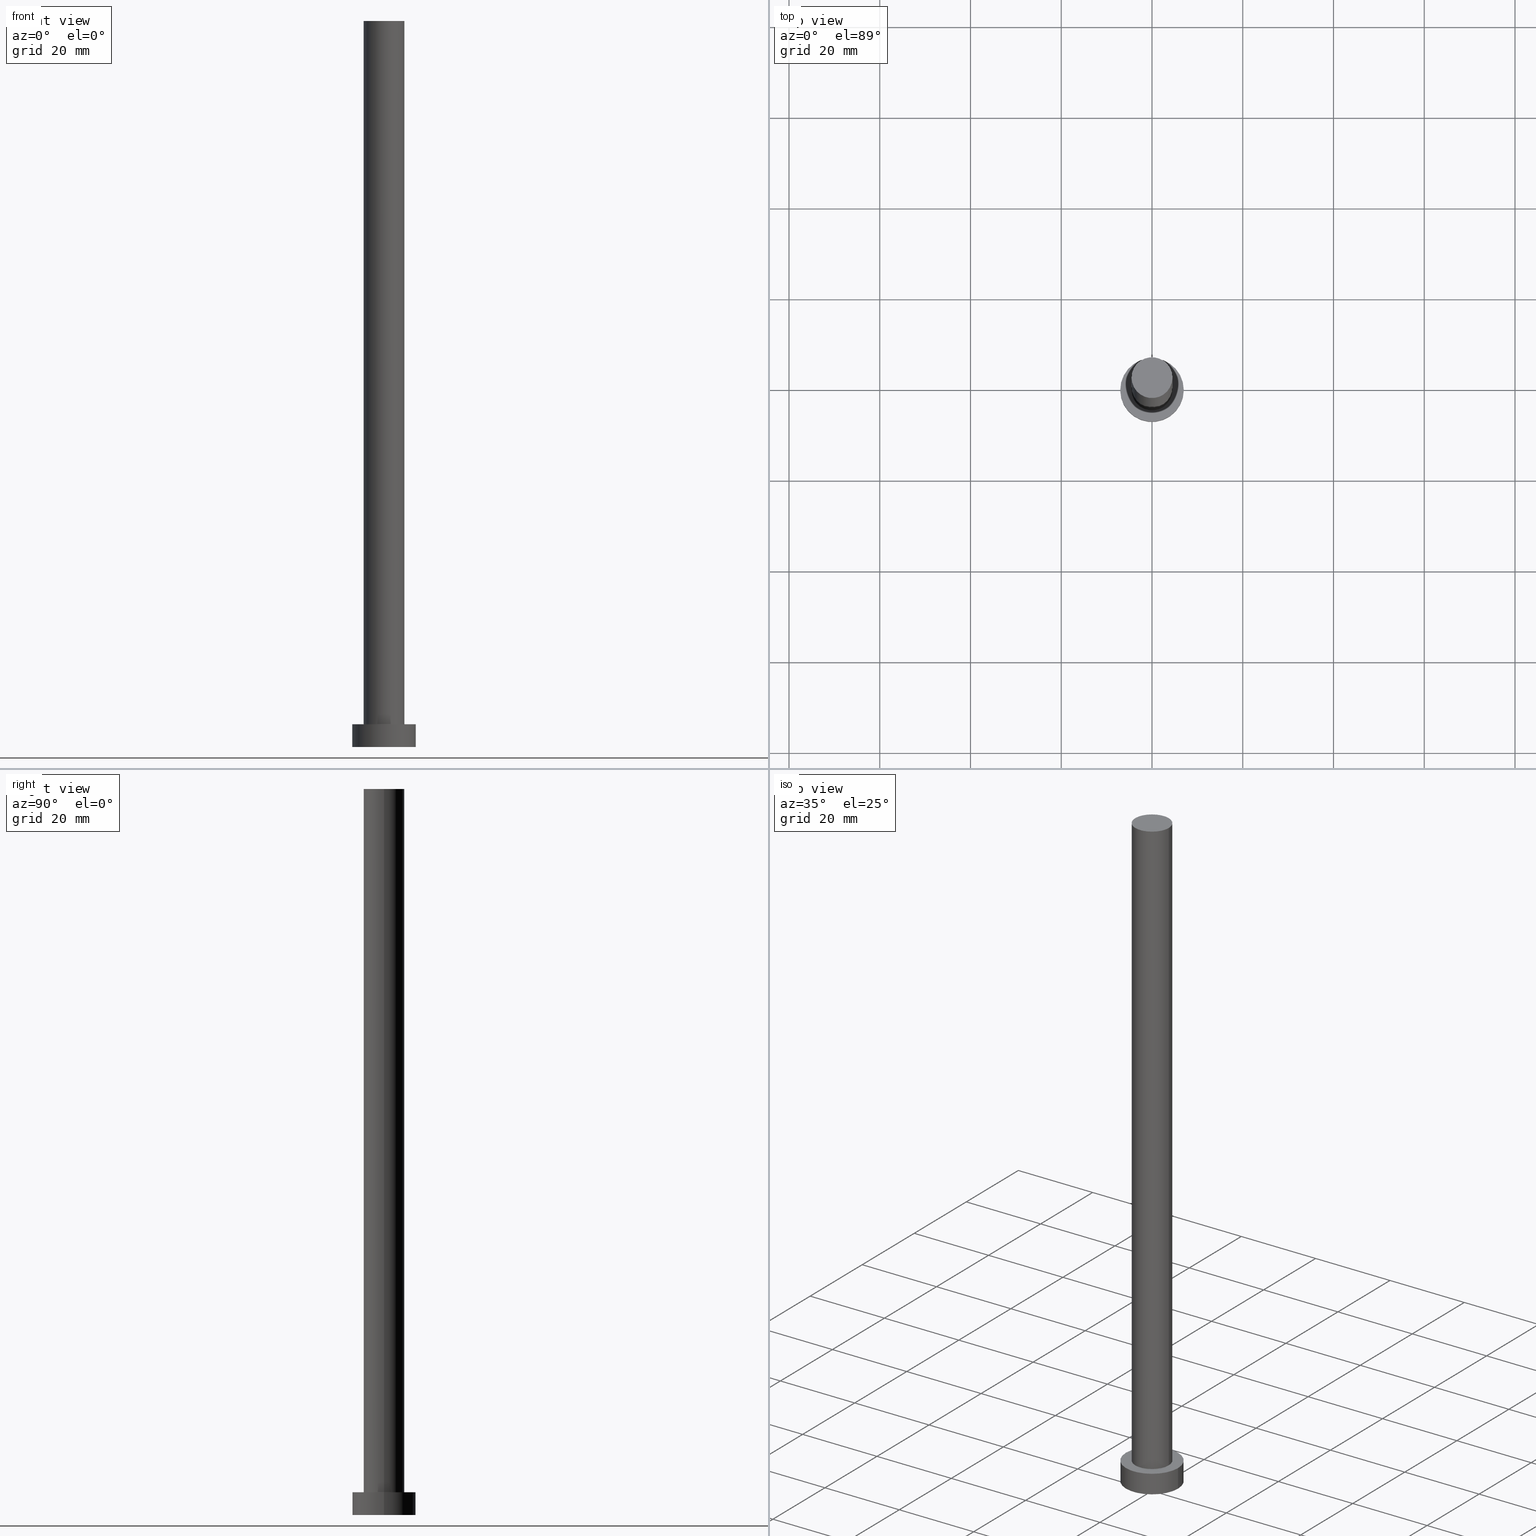
[diagram: canonical four-view strip — front | top / right | iso, engineering-drawing reading convention]
A machine part, canonical four-view strip (front | top / right | iso — engineering-drawing reading convention). The complete STEP part file that produces these views, byte-faithful:
ISO-10303-21;
HEADER;
FILE_DESCRIPTION (( 'STEP AP203' ),
    '1' );
FILE_NAME ('f4b8.STEP',
    '2023-02-12T11:36:02',
    ( '' ),
    ( '' ),
    'SwSTEP 2.0',
    'SolidWorks 2019',
    '' );
FILE_SCHEMA (( 'CONFIG_CONTROL_DESIGN' ));
ENDSEC;

DATA;
#1 = FACE_OUTER_BOUND ( 'NONE', #74, .T. ) ;
#2 = CYLINDRICAL_SURFACE ( 'NONE', #30, 4.500000000000000888 ) ;
#3 = AXIS2_PLACEMENT_3D ( 'NONE', #202, #183, #157 ) ;
#4 = CARTESIAN_POINT ( 'NONE',  ( -4.500000000000000888, 0.000000000000000000, 160.0000000000000000 ) ) ;
#5 = PERSON_AND_ORGANIZATION ( #29, #225 ) ;
#6 = MECHANICAL_CONTEXT ( 'NONE', #214, 'mechanical' ) ;
#7 = EDGE_CURVE ( 'NONE', #93, #173, #35, .T. ) ;
#8 = APPROVAL_ROLE ( '' ) ;
#9 = APPROVAL_ROLE ( '' ) ;
#10 = EDGE_CURVE ( 'NONE', #211, #11, #73, .T. ) ;
#11 = VERTEX_POINT ( 'NONE', #234 ) ;
#12 = ORIENTED_EDGE ( 'NONE', *, *, #118, .T. ) ;
#13 = APPROVAL ( #65, 'NEUR�EN�' ) ;
#14 = ORIENTED_EDGE ( 'NONE', *, *, #216, .T. ) ;
#15 = APPROVAL_PERSON_ORGANIZATION ( #84, #57, #9 ) ;
#16 = ORIENTED_EDGE ( 'NONE', *, *, #51, .T. ) ;
#17 = PLANE ( 'NONE',  #128 ) ;
#18 = DIRECTION ( 'NONE',  ( 1.000000000000000000, 0.000000000000000000, 0.000000000000000000 ) ) ;
#19 = CC_DESIGN_PERSON_AND_ORGANIZATION_ASSIGNMENT ( #69, #166, ( #104 ) ) ;
#20 = AXIS2_PLACEMENT_3D ( 'NONE', #215, #142, #120 ) ;
#21 = DIRECTION ( 'NONE',  ( -0.000000000000000000, -0.000000000000000000, -1.000000000000000000 ) ) ;
#22 = FACE_OUTER_BOUND ( 'NONE', #229, .T. ) ;
#23 = CC_DESIGN_PERSON_AND_ORGANIZATION_ASSIGNMENT ( #27, #205, ( #46 ) ) ;
#24 = DIRECTION ( 'NONE',  ( -1.000000000000000000, 0.000000000000000000, 0.000000000000000000 ) ) ;
#25 = CYLINDRICAL_SURFACE ( 'NONE', #20, 7.000000000000000000 ) ;
#26 = APPROVAL_DATE_TIME ( #126, #57 ) ;
#27 = PERSON_AND_ORGANIZATION ( #29, #225 ) ;
#28 = ADVANCED_FACE ( 'NONE', ( #111 ), #17, .T. ) ;
#29 = PERSON ( 'NEUR�EN�', 'NEUR�EN�', 'NEUR�EN�', ('NEUR�EN�'), ('NEUR�EN�'), ('NEUR�EN�') ) ;
#30 = AXIS2_PLACEMENT_3D ( 'NONE', #253, #98, #59 ) ;
#31 = CARTESIAN_POINT ( 'NONE',  ( 0.000000000000000000, 0.000000000000000000, 0.000000000000000000 ) ) ;
#32 = APPROVAL ( #149, 'NEUR�EN�' ) ;
#33 = EDGE_LOOP ( 'NONE', ( #134, #53 ) ) ;
#34 = ORIENTED_EDGE ( 'NONE', *, *, #223, .T. ) ;
#35 = CIRCLE ( 'NONE', #235, 4.500000000000000888 ) ;
#36 = ORIENTED_EDGE ( 'NONE', *, *, #97, .T. ) ;
#37 = DIRECTION ( 'NONE',  ( -0.000000000000000000, -0.000000000000000000, -1.000000000000000000 ) ) ;
#38 = VECTOR ( 'NONE', #21, 1000.000000000000000 ) ;
#39 = CARTESIAN_POINT ( 'NONE',  ( 4.500000000000000888, 5.510910596163089556E-16, 160.0000000000000000 ) ) ;
#40 = PLANE ( 'NONE',  #144 ) ;
#41 = CARTESIAN_POINT ( 'NONE',  ( 0.000000000000000000, 0.000000000000000000, 5.000000000000000000 ) ) ;
#42 = LOCAL_TIME ( 12, 36, 2.000000000000000000, #85 ) ;
#43 = PERSON_AND_ORGANIZATION_ROLE ( 'design_owner' ) ;
#44 = PERSON_AND_ORGANIZATION ( #29, #225 ) ;
#45 = APPROVAL_DATE_TIME ( #224, #13 ) ;
#46 = PRODUCT_DEFINITION ( 'NEZN�M�', '', #104, #201 ) ;
#47 = CALENDAR_DATE ( 2023, 12, 2 ) ;
#48 = CC_DESIGN_SECURITY_CLASSIFICATION ( #83, ( #104 ) ) ;
#49 = VERTEX_POINT ( 'NONE', #54 ) ;
#50 = ORIENTED_EDGE ( 'NONE', *, *, #97, .F. ) ;
#51 = EDGE_CURVE ( 'NONE', #93, #92, #213, .T. ) ;
#52 = VERTEX_POINT ( 'NONE', #131 ) ;
#53 = ORIENTED_EDGE ( 'NONE', *, *, #223, .F. ) ;
#54 = CARTESIAN_POINT ( 'NONE',  ( -7.000000000000000000, 0.000000000000000000, 0.000000000000000000 ) ) ;
#55 = CARTESIAN_POINT ( 'NONE',  ( -4.500000000000000888, 0.000000000000000000, 5.000000000000000000 ) ) ;
#56 = DIRECTION ( 'NONE',  ( -1.000000000000000000, 0.000000000000000000, 0.000000000000000000 ) ) ;
#57 = APPROVAL ( #147, 'NEUR�EN�' ) ;
#58 = CIRCLE ( 'NONE', #95, 4.500000000000000888 ) ;
#59 = DIRECTION ( 'NONE',  ( -1.000000000000000000, 0.000000000000000000, 0.000000000000000000 ) ) ;
#60 = DIRECTION ( 'NONE',  ( 0.000000000000000000, 0.000000000000000000, 1.000000000000000000 ) ) ;
#61 = DIRECTION ( 'NONE',  ( 0.000000000000000000, 0.000000000000000000, 1.000000000000000000 ) ) ;
#62 = PRODUCT_DEFINITION_SHAPE ( 'NONE', 'NONE',  #46 ) ;
#63 = MANIFOLD_SOLID_BREP ( 'P�idat vysunut�m3', #68 ) ;
#64 = COORDINATED_UNIVERSAL_TIME_OFFSET ( 1, 0, .AHEAD. ) ;
#65 = APPROVAL_STATUS ( 'not_yet_approved' ) ;
#66 = CC_DESIGN_PERSON_AND_ORGANIZATION_ASSIGNMENT ( #44, #244, ( #104 ) ) ;
#67 = DATE_AND_TIME ( #47, #168 ) ;
#68 = CLOSED_SHELL ( 'NONE', ( #164, #160, #178, #191, #175, #130, #28 ) ) ;
#69 = PERSON_AND_ORGANIZATION ( #29, #225 ) ;
#70 = DIRECTION ( 'NONE',  ( -0.000000000000000000, -0.000000000000000000, -1.000000000000000000 ) ) ;
#71 = EDGE_CURVE ( 'NONE', #11, #49, #231, .T. ) ;
#72 = EDGE_LOOP ( 'NONE', ( #88, #250, #14, #12 ) ) ;
#73 = LINE ( 'NONE', #248, #125 ) ;
#74 = EDGE_LOOP ( 'NONE', ( #174, #36 ) ) ;
#75 = AXIS2_PLACEMENT_3D ( 'NONE', #119, #198, #238 ) ;
#76 = FACE_OUTER_BOUND ( 'NONE', #133, .T. ) ;
#77 = DIRECTION ( 'NONE',  ( 1.000000000000000000, 0.000000000000000000, 0.000000000000000000 ) ) ;
#78 = PLANE ( 'NONE',  #123 ) ;
#79 = VECTOR ( 'NONE', #70, 1000.000000000000000 ) ;
#80 = DIRECTION ( 'NONE',  ( 1.000000000000000000, 0.000000000000000000, 0.000000000000000000 ) ) ;
#81 = EDGE_CURVE ( 'NONE', #52, #211, #132, .T. ) ;
#82 =( NAMED_UNIT ( * ) PLANE_ANGLE_UNIT ( ) SI_UNIT ( $, .RADIAN. ) );
#83 = SECURITY_CLASSIFICATION ( '', '', #228 ) ;
#84 = PERSON_AND_ORGANIZATION ( #29, #225 ) ;
#85 = COORDINATED_UNIVERSAL_TIME_OFFSET ( 1, 0, .AHEAD. ) ;
#86 = LOCAL_TIME ( 12, 36, 2.000000000000000000, #64 ) ;
#87 = COORDINATED_UNIVERSAL_TIME_OFFSET ( 1, 0, .AHEAD. ) ;
#88 = ORIENTED_EDGE ( 'NONE', *, *, #10, .F. ) ;
#89 = DIRECTION ( 'NONE',  ( 0.000000000000000000, 0.000000000000000000, 1.000000000000000000 ) ) ;
#90 = CC_DESIGN_APPROVAL ( #32, ( #46 ) ) ;
#91 = ORIENTED_EDGE ( 'NONE', *, *, #118, .F. ) ;
#92 = VERTEX_POINT ( 'NONE', #241 ) ;
#93 = VERTEX_POINT ( 'NONE', #39 ) ;
#94 = CARTESIAN_POINT ( 'NONE',  ( -4.500000000000000888, 0.000000000000000000, 160.0000000000000000 ) ) ;
#95 = AXIS2_PLACEMENT_3D ( 'NONE', #139, #177, #18 ) ;
#96 = CARTESIAN_POINT ( 'NONE',  ( 0.000000000000000000, 0.000000000000000000, 5.000000000000000000 ) ) ;
#97 = EDGE_CURVE ( 'NONE', #211, #52, #148, .T. ) ;
#98 = DIRECTION ( 'NONE',  ( -0.000000000000000000, -0.000000000000000000, -1.000000000000000000 ) ) ;
#99 = FACE_OUTER_BOUND ( 'NONE', #233, .T. ) ;
#100 = CARTESIAN_POINT ( 'NONE',  ( -7.000000000000000000, 0.000000000000000000, 5.000000000000000000 ) ) ;
#101 = CIRCLE ( 'NONE', #75, 7.000000000000000000 ) ;
#102 = APPROVAL_ROLE ( '' ) ;
#103 = PERSON_AND_ORGANIZATION_ROLE ( 'classification_officer' ) ;
#104 = PRODUCT_DEFINITION_FORMATION_WITH_SPECIFIED_SOURCE ( 'LIBOVOLN�', '', #115, .NOT_KNOWN. ) ;
#105 = CC_DESIGN_PERSON_AND_ORGANIZATION_ASSIGNMENT ( #245, #43, ( #115 ) ) ;
#106 = DIRECTION ( 'NONE',  ( 1.000000000000000000, 0.000000000000000000, 0.000000000000000000 ) ) ;
#107 = CARTESIAN_POINT ( 'NONE',  ( 0.000000000000000000, 0.000000000000000000, 0.000000000000000000 ) ) ;
#108 = DATE_TIME_ROLE ( 'creation_date' ) ;
#109 = AXIS2_PLACEMENT_3D ( 'NONE', #96, #60, #77 ) ;
#110 = ORIENTED_EDGE ( 'NONE', *, *, #141, .T. ) ;
#111 = FACE_OUTER_BOUND ( 'NONE', #230, .T. ) ;
#112 = CC_DESIGN_DATE_AND_TIME_ASSIGNMENT ( #169, #108, ( #46 ) ) ;
#113 = ORIENTED_EDGE ( 'NONE', *, *, #7, .T. ) ;
#114 = DIRECTION ( 'NONE',  ( 0.000000000000000000, 0.000000000000000000, 1.000000000000000000 ) ) ;
#115 = PRODUCT ( 'f4b8', 'f4b8', '', ( #6 ) ) ;
#116 = FACE_OUTER_BOUND ( 'NONE', #72, .T. ) ;
#117 = APPROVAL_PERSON_ORGANIZATION ( #165, #13, #102 ) ;
#118 = EDGE_CURVE ( 'NONE', #49, #11, #101, .T. ) ;
#119 = CARTESIAN_POINT ( 'NONE',  ( 0.000000000000000000, 0.000000000000000000, 0.000000000000000000 ) ) ;
#120 = DIRECTION ( 'NONE',  ( -1.000000000000000000, 0.000000000000000000, 0.000000000000000000 ) ) ;
#121 = ADVANCED_BREP_SHAPE_REPRESENTATION ( 'f4b8', ( #63, #249 ), #163 ) ;
#122 = LINE ( 'NONE', #100, #38 ) ;
#123 = AXIS2_PLACEMENT_3D ( 'NONE', #179, #184, #196 ) ;
#124 = DATE_TIME_ROLE ( 'classification_date' ) ;
#125 = VECTOR ( 'NONE', #208, 1000.000000000000000 ) ;
#126 = DATE_AND_TIME ( #185, #138 ) ;
#127 = CALENDAR_DATE ( 2023, 12, 2 ) ;
#128 = AXIS2_PLACEMENT_3D ( 'NONE', #252, #170, #155 ) ;
#129 = APPLICATION_PROTOCOL_DEFINITION ( 'international standard', 'config_control_design', 1994, #214 ) ;
#130 = ADVANCED_FACE ( 'NONE', ( #22 ), #2, .T. ) ;
#131 = CARTESIAN_POINT ( 'NONE',  ( -7.000000000000000000, 0.000000000000000000, 5.000000000000000000 ) ) ;
#132 = CIRCLE ( 'NONE', #3, 7.000000000000000000 ) ;
#133 = EDGE_LOOP ( 'NONE', ( #91, #192 ) ) ;
#134 = ORIENTED_EDGE ( 'NONE', *, *, #141, .F. ) ;
#135 = ORIENTED_EDGE ( 'NONE', *, *, #216, .F. ) ;
#136 = VERTEX_POINT ( 'NONE', #55 ) ;
#137 = DIRECTION ( 'NONE',  ( 1.000000000000000000, 0.000000000000000000, 0.000000000000000000 ) ) ;
#138 = LOCAL_TIME ( 12, 36, 2.000000000000000000, #242 ) ;
#139 = CARTESIAN_POINT ( 'NONE',  ( 0.000000000000000000, 0.000000000000000000, 5.000000000000000000 ) ) ;
#140 = DIRECTION ( 'NONE',  ( -0.000000000000000000, -0.000000000000000000, -1.000000000000000000 ) ) ;
#141 = EDGE_CURVE ( 'NONE', #136, #92, #152, .T. ) ;
#142 = DIRECTION ( 'NONE',  ( -0.000000000000000000, -0.000000000000000000, -1.000000000000000000 ) ) ;
#143 = CARTESIAN_POINT ( 'NONE',  ( 0.000000000000000000, 0.000000000000000000, 160.0000000000000000 ) ) ;
#144 = AXIS2_PLACEMENT_3D ( 'NONE', #199, #61, #161 ) ;
#145 = SHAPE_DEFINITION_REPRESENTATION ( #62, #121 ) ;
#146 = DATE_AND_TIME ( #186, #189 ) ;
#147 = APPROVAL_STATUS ( 'not_yet_approved' ) ;
#148 = CIRCLE ( 'NONE', #212, 7.000000000000000000 ) ;
#149 = APPROVAL_STATUS ( 'not_yet_approved' ) ;
#150 = ORIENTED_EDGE ( 'NONE', *, *, #246, .F. ) ;
#151 = ORIENTED_EDGE ( 'NONE', *, *, #51, .F. ) ;
#152 = CIRCLE ( 'NONE', #109, 4.500000000000000888 ) ;
#153 = ORIENTED_EDGE ( 'NONE', *, *, #246, .T. ) ;
#154 = CIRCLE ( 'NONE', #181, 4.500000000000000888 ) ;
#155 = DIRECTION ( 'NONE',  ( 1.000000000000000000, 0.000000000000000000, -0.000000000000000000 ) ) ;
#156 = CARTESIAN_POINT ( 'NONE',  ( 0.000000000000000000, 0.000000000000000000, 5.000000000000000000 ) ) ;
#157 = DIRECTION ( 'NONE',  ( 1.000000000000000000, 0.000000000000000000, 0.000000000000000000 ) ) ;
#158 = CC_DESIGN_APPROVAL ( #13, ( #83 ) ) ;
#159 = CARTESIAN_POINT ( 'NONE',  ( 0.000000000000000000, 0.000000000000000000, 160.0000000000000000 ) ) ;
#160 = ADVANCED_FACE ( 'NONE', ( #239 ), #25, .T. ) ;
#161 = DIRECTION ( 'NONE',  ( 1.000000000000000000, 0.000000000000000000, -0.000000000000000000 ) ) ;
#162 = CYLINDRICAL_SURFACE ( 'NONE', #206, 4.500000000000000888 ) ;
#163 =( GEOMETRIC_REPRESENTATION_CONTEXT ( 3 ) GLOBAL_UNCERTAINTY_ASSIGNED_CONTEXT ( ( #182 ) ) GLOBAL_UNIT_ASSIGNED_CONTEXT ( ( #176, #82, #221 ) ) REPRESENTATION_CONTEXT ( 'NONE', 'WORKASPACE' ) );
#164 = ADVANCED_FACE ( 'NONE', ( #99 ), #162, .T. ) ;
#165 = PERSON_AND_ORGANIZATION ( #29, #225 ) ;
#166 = PERSON_AND_ORGANIZATION_ROLE ( 'design_supplier' ) ;
#167 = CC_DESIGN_DATE_AND_TIME_ASSIGNMENT ( #146, #124, ( #83 ) ) ;
#168 = LOCAL_TIME ( 12, 36, 2.000000000000000000, #87 ) ;
#169 = DATE_AND_TIME ( #222, #42 ) ;
#170 = DIRECTION ( 'NONE',  ( 0.000000000000000000, 0.000000000000000000, 1.000000000000000000 ) ) ;
#171 = DIRECTION ( 'NONE',  ( 1.000000000000000000, 0.000000000000000000, 0.000000000000000000 ) ) ;
#172 = CARTESIAN_POINT ( 'NONE',  ( 0.000000000000000000, 0.000000000000000000, 160.0000000000000000 ) ) ;
#173 = VERTEX_POINT ( 'NONE', #94 ) ;
#174 = ORIENTED_EDGE ( 'NONE', *, *, #81, .T. ) ;
#175 = ADVANCED_FACE ( 'NONE', ( #76 ), #78, .F. ) ;
#176 =( LENGTH_UNIT ( ) NAMED_UNIT ( * ) SI_UNIT ( .MILLI., .METRE. ) );
#177 = DIRECTION ( 'NONE',  ( 0.000000000000000000, 0.000000000000000000, 1.000000000000000000 ) ) ;
#178 = ADVANCED_FACE ( 'NONE', ( #116 ), #197, .T. ) ;
#179 = CARTESIAN_POINT ( 'NONE',  ( 0.000000000000000000, 0.000000000000000000, 0.000000000000000000 ) ) ;
#180 = APPLICATION_CONTEXT ( 'configuration controlled 3d designs of mechanical parts and assemblies' ) ;
#181 = AXIS2_PLACEMENT_3D ( 'NONE', #143, #255, #80 ) ;
#182 = UNCERTAINTY_MEASURE_WITH_UNIT (LENGTH_MEASURE( 1.000000000000000082E-05 ), #176, 'distance_accuracy_value', 'NONE');
#183 = DIRECTION ( 'NONE',  ( 0.000000000000000000, 0.000000000000000000, 1.000000000000000000 ) ) ;
#184 = DIRECTION ( 'NONE',  ( 0.000000000000000000, 0.000000000000000000, 1.000000000000000000 ) ) ;
#185 = CALENDAR_DATE ( 2023, 12, 2 ) ;
#186 = CALENDAR_DATE ( 2023, 12, 2 ) ;
#187 = DIRECTION ( 'NONE',  ( 0.000000000000000000, 0.000000000000000000, 1.000000000000000000 ) ) ;
#188 = APPROVAL_DATE_TIME ( #67, #32 ) ;
#189 = LOCAL_TIME ( 12, 36, 2.000000000000000000, #226 ) ;
#190 = ORIENTED_EDGE ( 'NONE', *, *, #71, .T. ) ;
#191 = ADVANCED_FACE ( 'NONE', ( #217, #1 ), #40, .T. ) ;
#192 = ORIENTED_EDGE ( 'NONE', *, *, #71, .F. ) ;
#193 = ORIENTED_EDGE ( 'NONE', *, *, #254, .F. ) ;
#194 = CC_DESIGN_PERSON_AND_ORGANIZATION_ASSIGNMENT ( #243, #103, ( #83 ) ) ;
#195 = DIRECTION ( 'NONE',  ( 1.000000000000000000, 0.000000000000000000, 0.000000000000000000 ) ) ;
#196 = DIRECTION ( 'NONE',  ( 1.000000000000000000, 0.000000000000000000, -0.000000000000000000 ) ) ;
#197 = CYLINDRICAL_SURFACE ( 'NONE', #210, 7.000000000000000000 ) ;
#198 = DIRECTION ( 'NONE',  ( 0.000000000000000000, 0.000000000000000000, 1.000000000000000000 ) ) ;
#199 = CARTESIAN_POINT ( 'NONE',  ( 0.000000000000000000, 0.000000000000000000, 5.000000000000000000 ) ) ;
#200 = VECTOR ( 'NONE', #220, 1000.000000000000000 ) ;
#201 = DESIGN_CONTEXT ( 'detailed design', #180, 'design' ) ;
#202 = CARTESIAN_POINT ( 'NONE',  ( 0.000000000000000000, 0.000000000000000000, 5.000000000000000000 ) ) ;
#203 = APPLICATION_PROTOCOL_DEFINITION ( 'international standard', 'config_control_design', 1994, #180 ) ;
#204 = CC_DESIGN_APPROVAL ( #57, ( #104 ) ) ;
#205 = PERSON_AND_ORGANIZATION_ROLE ( 'creator' ) ;
#206 = AXIS2_PLACEMENT_3D ( 'NONE', #159, #37, #56 ) ;
#207 = ORIENTED_EDGE ( 'NONE', *, *, #10, .T. ) ;
#208 = DIRECTION ( 'NONE',  ( -0.000000000000000000, -0.000000000000000000, -1.000000000000000000 ) ) ;
#209 = EDGE_LOOP ( 'NONE', ( #50, #207, #190, #135 ) ) ;
#210 = AXIS2_PLACEMENT_3D ( 'NONE', #41, #140, #24 ) ;
#211 = VERTEX_POINT ( 'NONE', #218 ) ;
#212 = AXIS2_PLACEMENT_3D ( 'NONE', #156, #236, #137 ) ;
#213 = LINE ( 'NONE', #247, #79 ) ;
#214 = APPLICATION_CONTEXT ( 'configuration controlled 3d designs of mechanical parts and assemblies' ) ;
#215 = CARTESIAN_POINT ( 'NONE',  ( 0.000000000000000000, 0.000000000000000000, 5.000000000000000000 ) ) ;
#216 = EDGE_CURVE ( 'NONE', #52, #49, #122, .T. ) ;
#217 = FACE_BOUND ( 'NONE', #33, .T. ) ;
#218 = CARTESIAN_POINT ( 'NONE',  ( 7.000000000000000000, 8.572527594031473190E-16, 5.000000000000000000 ) ) ;
#219 = APPROVAL_PERSON_ORGANIZATION ( #5, #32, #8 ) ;
#220 = DIRECTION ( 'NONE',  ( -0.000000000000000000, -0.000000000000000000, -1.000000000000000000 ) ) ;
#221 =( NAMED_UNIT ( * ) SI_UNIT ( $, .STERADIAN. ) SOLID_ANGLE_UNIT ( ) );
#222 = CALENDAR_DATE ( 2023, 12, 2 ) ;
#223 = EDGE_CURVE ( 'NONE', #92, #136, #58, .T. ) ;
#224 = DATE_AND_TIME ( #127, #86 ) ;
#225 = ORGANIZATION ( 'NEUR�EN�', 'NEUR�EN�', '' ) ;
#226 = COORDINATED_UNIVERSAL_TIME_OFFSET ( 1, 0, .AHEAD. ) ;
#227 = AXIS2_PLACEMENT_3D ( 'NONE', #31, #89, #171 ) ;
#228 = SECURITY_CLASSIFICATION_LEVEL ( 'unclassified' ) ;
#229 = EDGE_LOOP ( 'NONE', ( #151, #150, #232, #110 ) ) ;
#230 = EDGE_LOOP ( 'NONE', ( #153, #113 ) ) ;
#231 = CIRCLE ( 'NONE', #227, 7.000000000000000000 ) ;
#232 = ORIENTED_EDGE ( 'NONE', *, *, #254, .T. ) ;
#233 = EDGE_LOOP ( 'NONE', ( #251, #16, #34, #193 ) ) ;
#234 = CARTESIAN_POINT ( 'NONE',  ( 7.000000000000000000, 8.572527594031473190E-16, 0.000000000000000000 ) ) ;
#235 = AXIS2_PLACEMENT_3D ( 'NONE', #172, #114, #195 ) ;
#236 = DIRECTION ( 'NONE',  ( 0.000000000000000000, 0.000000000000000000, 1.000000000000000000 ) ) ;
#237 = LINE ( 'NONE', #4, #200 ) ;
#238 = DIRECTION ( 'NONE',  ( 1.000000000000000000, 0.000000000000000000, 0.000000000000000000 ) ) ;
#239 = FACE_OUTER_BOUND ( 'NONE', #209, .T. ) ;
#240 = PRODUCT_RELATED_PRODUCT_CATEGORY ( 'detail', '', ( #115 ) ) ;
#241 = CARTESIAN_POINT ( 'NONE',  ( 4.500000000000000888, 5.510910596163089556E-16, 5.000000000000000000 ) ) ;
#242 = COORDINATED_UNIVERSAL_TIME_OFFSET ( 1, 0, .AHEAD. ) ;
#243 = PERSON_AND_ORGANIZATION ( #29, #225 ) ;
#244 = PERSON_AND_ORGANIZATION_ROLE ( 'creator' ) ;
#245 = PERSON_AND_ORGANIZATION ( #29, #225 ) ;
#246 = EDGE_CURVE ( 'NONE', #173, #93, #154, .T. ) ;
#247 = CARTESIAN_POINT ( 'NONE',  ( 4.500000000000000888, 5.510910596163089556E-16, 160.0000000000000000 ) ) ;
#248 = CARTESIAN_POINT ( 'NONE',  ( 7.000000000000000000, 8.572527594031473190E-16, 5.000000000000000000 ) ) ;
#249 = AXIS2_PLACEMENT_3D ( 'NONE', #107, #187, #106 ) ;
#250 = ORIENTED_EDGE ( 'NONE', *, *, #81, .F. ) ;
#251 = ORIENTED_EDGE ( 'NONE', *, *, #7, .F. ) ;
#252 = CARTESIAN_POINT ( 'NONE',  ( 0.000000000000000000, 0.000000000000000000, 160.0000000000000000 ) ) ;
#253 = CARTESIAN_POINT ( 'NONE',  ( 0.000000000000000000, 0.000000000000000000, 160.0000000000000000 ) ) ;
#254 = EDGE_CURVE ( 'NONE', #173, #136, #237, .T. ) ;
#255 = DIRECTION ( 'NONE',  ( 0.000000000000000000, 0.000000000000000000, 1.000000000000000000 ) ) ;
ENDSEC;
END-ISO-10303-21;
